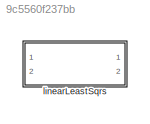
MODEL slx_9c5560f237bb
KIND library
CONFIG AbsTol = auto
CONFIG EnableMultiTasking = off
CONFIG FixedStep = auto
CONFIG MaxStep = auto
CONFIG MinStep = auto
CONFIG RelTol = 1e-3
CONFIG SampleTimeConstraint = Unconstrained
CONFIG Solver = VariableStepAuto
CONFIG SolverName = VariableStepAuto
CONFIG StartTime = 0.0
CONFIG StopTime = 10.0
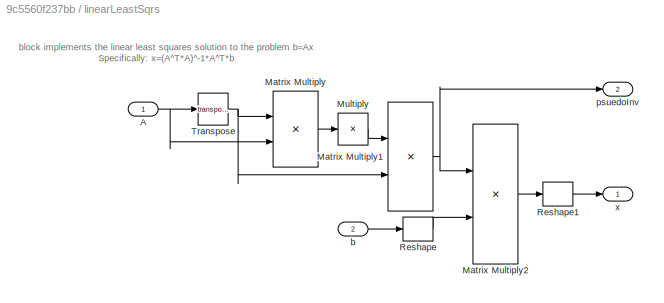
BLOCK [SubSystem] linearLeastSqrs
  Ports = [2, 2]
  RequestExecContextInheritance = off
BLOCK [Inport] linearLeastSqrs/A
BLOCK [Product] linearLeastSqrs/Matrix Multiply
  Multiplication = Matrix(*)
  Ports = [2, 1]
BLOCK [Product] linearLeastSqrs/Matrix Multiply1
  Multiplication = Matrix(*)
  Ports = [2, 1]
BLOCK [Product] linearLeastSqrs/Matrix Multiply2
  Multiplication = Matrix(*)
  Ports = [2, 1]
BLOCK [Product] linearLeastSqrs/Multiply
  Inputs = /
  Multiplication = Matrix(*)
  Ports = [1, 1]
BLOCK [Reshape] linearLeastSqrs/Reshape
  OutputDimensionality = Column vector (2-D)
  Ports = [1, 1]
BLOCK [Reshape] linearLeastSqrs/Reshape1
  OutputDimensionality = Column vector (2-D)
  Ports = [1, 1]
BLOCK [Math] linearLeastSqrs/Transpose
  Operator = transpose
  Ports = [1, 1]
  SignedPower = on
BLOCK [Inport] linearLeastSqrs/b
  Port = 2
BLOCK [Outport] linearLeastSqrs/psuedoInv
  Port = 2
  VectorParamsAs1DForOutWhenUnconnected = off
BLOCK [Outport] linearLeastSqrs/x
  VectorParamsAs1DForOutWhenUnconnected = off
ANNOTATION linearLeastSqrs: block implements the linear least squares solution to the problem b=Ax Specifically: x=(A^T*A)^-1*A^T*b
NET linearLeastSqrs/A:1 -> linearLeastSqrs/Matrix Multiply:2, linearLeastSqrs/Transpose:1
NET linearLeastSqrs/Matrix Multiply1:1 -> linearLeastSqrs/Matrix Multiply2:1, linearLeastSqrs/psuedoInv:1
LINE linearLeastSqrs/Matrix Multiply2:1 -> linearLeastSqrs/Reshape1:1
LINE linearLeastSqrs/Matrix Multiply:1 -> linearLeastSqrs/Multiply:1
LINE linearLeastSqrs/Multiply:1 -> linearLeastSqrs/Matrix Multiply1:1
LINE linearLeastSqrs/Reshape1:1 -> linearLeastSqrs/x:1
LINE linearLeastSqrs/Reshape:1 -> linearLeastSqrs/Matrix Multiply2:2
NET linearLeastSqrs/Transpose:1 -> linearLeastSqrs/Matrix Multiply1:2, linearLeastSqrs/Matrix Multiply:1
LINE linearLeastSqrs/b:1 -> linearLeastSqrs/Reshape:1
note: NET lines group one-source signal fan-out (src -> all destinations, sorted); 1:1 wires keep LINE
